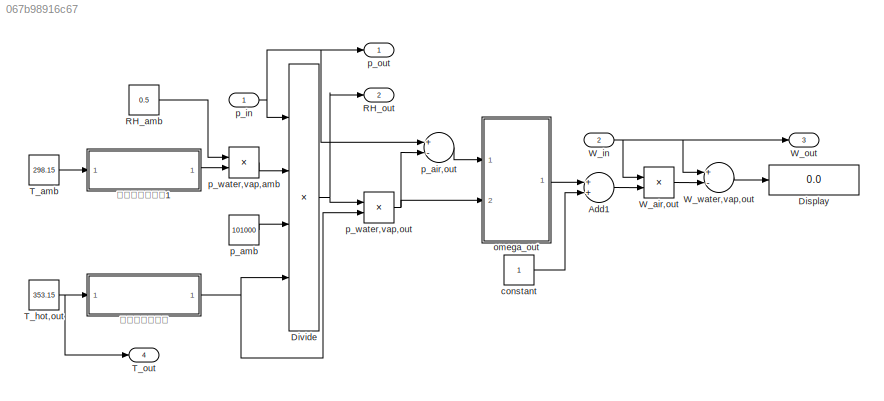
MODEL slx_067b98916c67
KIND model
BLOCK [Sum] Add1
  InputSameDT = off
  OutDataTypeStr = Inherit: Inherit via internal rule
  Ports = [2, 1]
  SaturateOnIntegerOverflow = off
BLOCK [Display] Display
  Decimation = 1
  Ports = [1]
BLOCK [Product] Divide
  InputSameDT = off
  Inputs = **//
  OutDataTypeStr = Inherit: Inherit via internal rule
  Ports = [4, 1]
  RndMeth = Floor
  SaturateOnIntegerOverflow = off
BLOCK [Constant] RH_amb
  Value = 0.5
BLOCK [Outport] RH_out
  IconDisplay = Port number
  Port = 2
BLOCK [Constant] T_amb
  Value = 298.15
BLOCK [Constant] T_hot,out
  Value = 353.15
BLOCK [Outport] T_out
  IconDisplay = Port number
  Port = 4
BLOCK [Product] W_air,out
  InputSameDT = off
  Inputs = */
  OutDataTypeStr = Inherit: Inherit via internal rule
  Ports = [2, 1]
  RndMeth = Floor
  SaturateOnIntegerOverflow = off
BLOCK [Inport] W_in
  IconDisplay = Port number
  Port = 2
BLOCK [Outport] W_out
  IconDisplay = Port number
  Port = 3
BLOCK [Sum] W_water,vap,out
  InputSameDT = off
  Inputs = +-
  OutDataTypeStr = Inherit: Inherit via internal rule
  Ports = [2, 1]
  SaturateOnIntegerOverflow = off
BLOCK [Constant] constant 
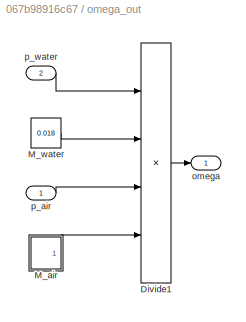
BLOCK [SubSystem] omega_out
  Ports = [2, 1]
  RequestExecContextInheritance = off
BLOCK [Product] omega_out/Divide1
  InputSameDT = off
  Inputs = **//
  OutDataTypeStr = Inherit: Inherit via internal rule
  Ports = [4, 1]
  RndMeth = Floor
  SaturateOnIntegerOverflow = off
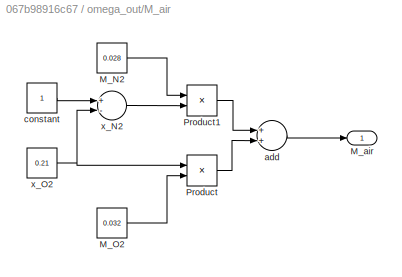
BLOCK [SubSystem] omega_out/M_air
  Ports = [0, 1]
  RequestExecContextInheritance = off
BLOCK [Constant] omega_out/M_air/M_N2
  Value = 0.028
BLOCK [Constant] omega_out/M_air/M_O2
  Value = 0.032
BLOCK [Outport] omega_out/M_air/M_air
  IconDisplay = Port number
BLOCK [Product] omega_out/M_air/Product
  InputSameDT = off
  OutDataTypeStr = Inherit: Inherit via internal rule
  Ports = [2, 1]
  RndMeth = Floor
  SaturateOnIntegerOverflow = off
BLOCK [Product] omega_out/M_air/Product1
  InputSameDT = off
  OutDataTypeStr = Inherit: Inherit via internal rule
  Ports = [2, 1]
  RndMeth = Floor
  SaturateOnIntegerOverflow = off
BLOCK [Sum] omega_out/M_air/add
  InputSameDT = off
  OutDataTypeStr = Inherit: Inherit via internal rule
  Ports = [2, 1]
  SaturateOnIntegerOverflow = off
BLOCK [Constant] omega_out/M_air/constant
BLOCK [Sum] omega_out/M_air/x_N2
  InputSameDT = off
  Inputs = +-
  OutDataTypeStr = Inherit: Inherit via internal rule
  Ports = [2, 1]
  SaturateOnIntegerOverflow = off
BLOCK [Constant] omega_out/M_air/x_O2
  Value = 0.21
BLOCK [Constant] omega_out/M_water
  Value = 0.018
BLOCK [Outport] omega_out/omega
  IconDisplay = Port number
BLOCK [Inport] omega_out/p_air
  IconDisplay = Port number
BLOCK [Inport] omega_out/p_water
  IconDisplay = Port number
  Port = 2
BLOCK [Sum] p_air,out
  InputSameDT = off
  Inputs = +-
  OutDataTypeStr = Inherit: Inherit via internal rule
  Ports = [2, 1]
  SaturateOnIntegerOverflow = off
BLOCK [Constant] p_amb
  Value = 101000
BLOCK [Inport] p_in
  IconDisplay = Port number
BLOCK [Outport] p_out
  IconDisplay = Port number
BLOCK [Product] p_water,vap,amb
  InputSameDT = off
  OutDataTypeStr = Inherit: Inherit via internal rule
  Ports = [2, 1]
  RndMeth = Floor
  SaturateOnIntegerOverflow = off
BLOCK [Product] p_water,vap,out
  InputSameDT = off
  OutDataTypeStr = Inherit: Inherit via internal rule
  Ports = [2, 1]
  RndMeth = Floor
  SaturateOnIntegerOverflow = off
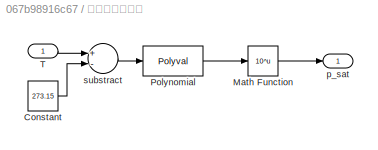
BLOCK [SubSystem] 饱和水蒸气压力
  Ports = [1, 1]
  RequestExecContextInheritance = off
BLOCK [Constant] 饱和水蒸气压力/Constant
  Value = 273.15
BLOCK [Math] 饱和水蒸气压力/Math Function
  Operator = 10^u
  Ports = [1, 1]
BLOCK [Polyval] 饱和水蒸气压力/Polynomial
  Coefs = [1.4454e-7,-9.1837e-5,0.2953,-2.1794]
BLOCK [Inport] 饱和水蒸气压力/T
  IconDisplay = Port number
BLOCK [Outport] 饱和水蒸气压力/p_sat
  IconDisplay = Port number
BLOCK [Sum] 饱和水蒸气压力/substract
  InputSameDT = off
  Inputs = +-
  OutDataTypeStr = Inherit: Inherit via internal rule
  Ports = [2, 1]
  SaturateOnIntegerOverflow = off
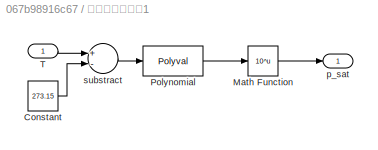
BLOCK [SubSystem] 饱和水蒸气压力1
  Ports = [1, 1]
  RequestExecContextInheritance = off
BLOCK [Constant] 饱和水蒸气压力1/Constant
  Value = 273.15
BLOCK [Math] 饱和水蒸气压力1/Math Function
  Operator = 10^u
  Ports = [1, 1]
BLOCK [Polyval] 饱和水蒸气压力1/Polynomial
  Coefs = [1.4454e-7,-9.1837e-5,0.2953,-2.1794]
BLOCK [Inport] 饱和水蒸气压力1/T
  IconDisplay = Port number
BLOCK [Outport] 饱和水蒸气压力1/p_sat
  IconDisplay = Port number
BLOCK [Sum] 饱和水蒸气压力1/substract
  InputSameDT = off
  Inputs = +-
  OutDataTypeStr = Inherit: Inherit via internal rule
  Ports = [2, 1]
  SaturateOnIntegerOverflow = off
LINE Add1:1 -> W_air,out:2
NET Divide:1 -> RH_out:1, p_water,vap,out:1
LINE RH_amb:1 -> p_water,vap,amb:1
LINE T_amb:1 -> 饱和水蒸气压力1:1
NET T_hot,out:1 -> T_out:1, 饱和水蒸气压力:1
LINE W_air,out:1 -> W_water,vap,out:2
NET W_in:1 -> W_air,out:1, W_out:1, W_water,vap,out:1
LINE W_water,vap,out:1 -> Display:1
LINE constant :1 -> Add1:2
LINE omega_out/Divide1:1 -> omega_out/omega:1
LINE omega_out/M_air/M_N2:1 -> omega_out/M_air/Product1:1
LINE omega_out/M_air/M_O2:1 -> omega_out/M_air/Product:2
LINE omega_out/M_air/Product1:1 -> omega_out/M_air/add:1
LINE omega_out/M_air/Product:1 -> omega_out/M_air/add:2
LINE omega_out/M_air/add:1 -> omega_out/M_air/M_air:1
LINE omega_out/M_air/constant:1 -> omega_out/M_air/x_N2:1
LINE omega_out/M_air/x_N2:1 -> omega_out/M_air/Product1:2
NET omega_out/M_air/x_O2:1 -> omega_out/M_air/Product:1, omega_out/M_air/x_N2:2
LINE omega_out/M_air:1 -> omega_out/Divide1:4
LINE omega_out/M_water:1 -> omega_out/Divide1:2
LINE omega_out/p_air:1 -> omega_out/Divide1:3
LINE omega_out/p_water:1 -> omega_out/Divide1:1
LINE omega_out:1 -> Add1:1
LINE p_air,out:1 -> omega_out:1
LINE p_amb:1 -> Divide:3
NET p_in:1 -> Divide:1, p_air,out:1, p_out:1
LINE p_water,vap,amb:1 -> Divide:2
NET p_water,vap,out:1 -> omega_out:2, p_air,out:2
LINE 饱和水蒸气压力/Constant:1 -> 饱和水蒸气压力/substract:2
LINE 饱和水蒸气压力/Math Function:1 -> 饱和水蒸气压力/p_sat:1
LINE 饱和水蒸气压力/Polynomial:1 -> 饱和水蒸气压力/Math Function:1
LINE 饱和水蒸气压力/T:1 -> 饱和水蒸气压力/substract:1
LINE 饱和水蒸气压力/substract:1 -> 饱和水蒸气压力/Polynomial:1
LINE 饱和水蒸气压力1/Constant:1 -> 饱和水蒸气压力1/substract:2
LINE 饱和水蒸气压力1/Math Function:1 -> 饱和水蒸气压力1/p_sat:1
LINE 饱和水蒸气压力1/Polynomial:1 -> 饱和水蒸气压力1/Math Function:1
LINE 饱和水蒸气压力1/T:1 -> 饱和水蒸气压力1/substract:1
LINE 饱和水蒸气压力1/substract:1 -> 饱和水蒸气压力1/Polynomial:1
LINE 饱和水蒸气压力1:1 -> p_water,vap,amb:2
NET 饱和水蒸气压力:1 -> Divide:4, p_water,vap,out:2
note: NET lines group one-source signal fan-out (src -> all destinations, sorted); 1:1 wires keep LINE
